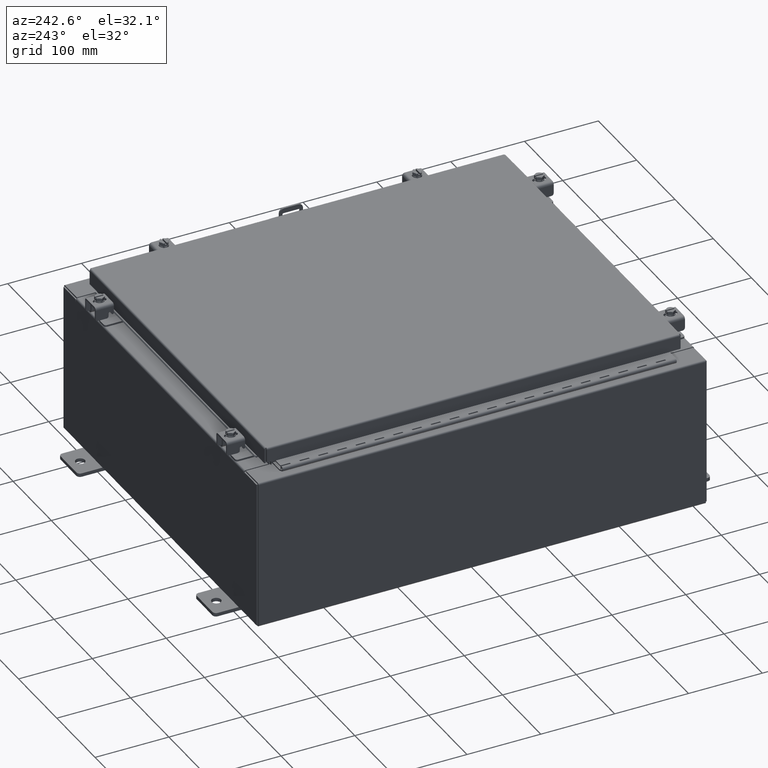
[diagram: clean part render]
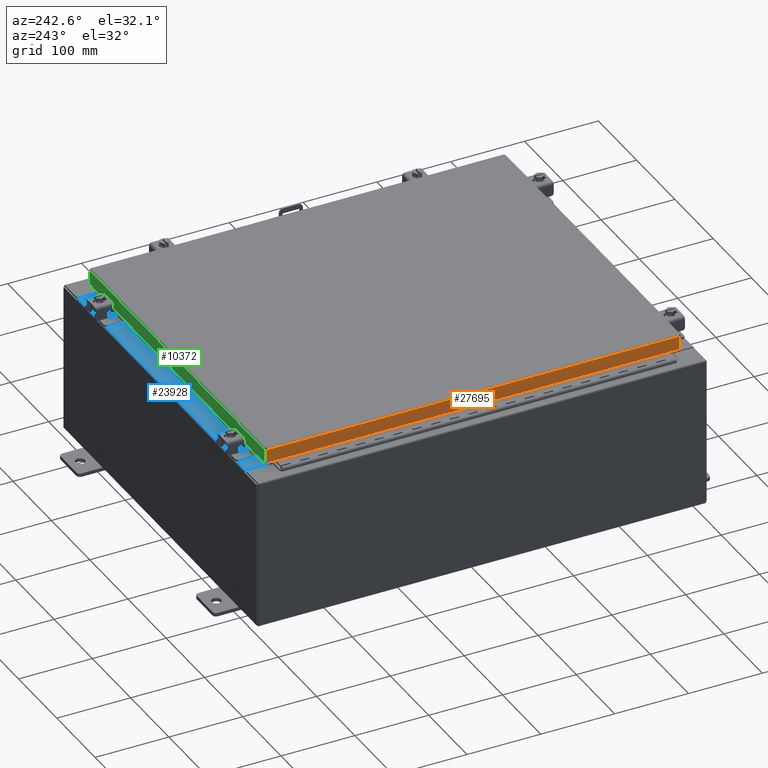
[diagram: same view with three faces highlighted in distinct colors, each labeled with its STEP entity id]
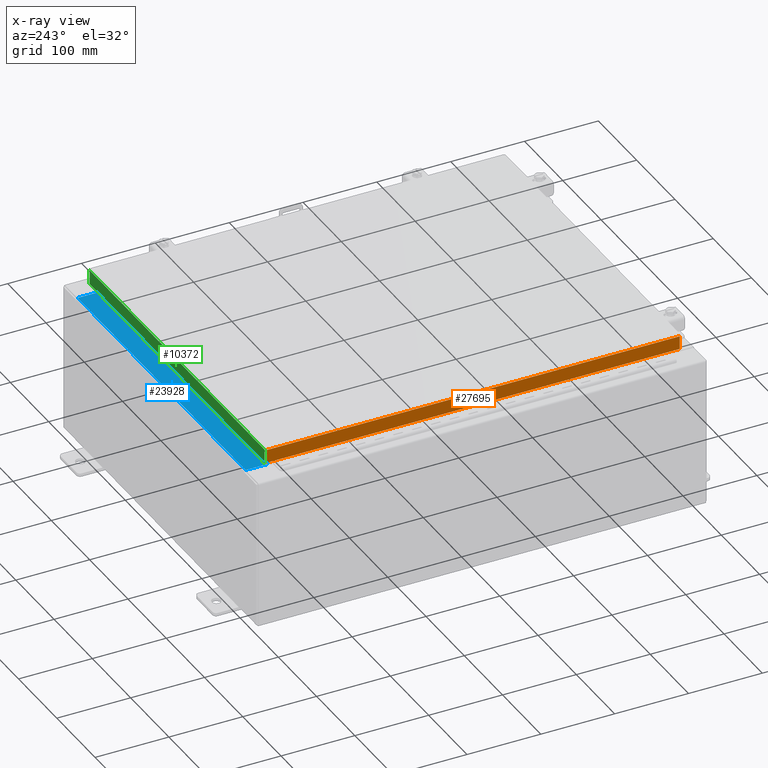
[diagram: x-ray of the same camera — body ghosted, the three highlighted faces saturated]
A machine part, auxiliary view with three faces highlighted in distinct colors.
The next image is the same camera in x-ray (body ghosted, the three faces saturated) — at least one of them is partly hidden behind the body in this view.
Their STEP definitions:

[orange] entity #27695 — the highlighted planar face has unit normal (1, 0, -0).
#854 = ORIENTED_EDGE ( 'NONE', *, *, #2031, .T. ) ;
#1526 = DIRECTION ( 'NONE',  ( -3.034122441942816500E-015, 0.0000000000000000000, -1.000000000000000000 ) ) ;
#2031 = EDGE_CURVE ( 'NONE', #32681, #29588, #24134, .T. ) ;
#2537 = DIRECTION ( 'NONE',  ( -3.034122441942816500E-015, 6.982962677686265900E-015, -1.000000000000000000 ) ) ;
#3167 = CARTESIAN_POINT ( 'NONE',  ( -9.078000000000001200, -11.00515786437626700, -0.7949999999999996000 ) ) ;
#3697 = CARTESIAN_POINT ( 'NONE',  ( -9.077999999999999400, 11.00515786437626700, 1.046531838129534400E-013 ) ) ;
#5030 = CARTESIAN_POINT ( 'NONE',  ( -9.077999999999999400, -11.00515786437627100, -0.07469999999999976700 ) ) ;
#6402 = ORIENTED_EDGE ( 'NONE', *, *, #32949, .F. ) ;
#6986 = VECTOR ( 'NONE', #7234, 39.37007874015748100 ) ;
#7234 = DIRECTION ( 'NONE',  ( -3.034122441942816500E-015, 6.982962677686265900E-015, -1.000000000000000000 ) ) ;
#9183 = ORIENTED_EDGE ( 'NONE', *, *, #30529, .F. ) ;
#9303 = CARTESIAN_POINT ( 'NONE',  ( -9.078000000000001200, 11.00515786437627100, -0.7949999999999969300 ) ) ;
#9663 = CARTESIAN_POINT ( 'NONE',  ( -9.077999999999999400, -11.00515786437626900, -0.08770000000000007000 ) ) ;
#12405 = AXIS2_PLACEMENT_3D ( 'NONE', #14502, #19476, #1526 ) ;
#12672 = VECTOR ( 'NONE', #32901, 39.37007874015748100 ) ;
#13237 = VECTOR ( 'NONE', #30807, 39.37007874015748100 ) ;
#14502 = CARTESIAN_POINT ( 'NONE',  ( -9.077999999999999400, -3.391264428150889200E-030, 2.780457718396847000E-014 ) ) ;
#15464 = CARTESIAN_POINT ( 'NONE',  ( -9.078000000000001200, -11.09400000000000100, -0.7949999999999997100 ) ) ;
#15514 = LINE ( 'NONE', #27827, #13237 ) ;
#15586 = EDGE_CURVE ( 'NONE', #29635, #18475, #18600, .T. ) ;
#16774 = VECTOR ( 'NONE', #2537, 39.37007874015748100 ) ;
#16805 = PLANE ( 'NONE',  #12405 ) ;
#17249 = EDGE_LOOP ( 'NONE', ( #9183, #854, #6402, #24172 ) ) ;
#17794 = FACE_OUTER_BOUND ( 'NONE', #17249, .T. ) ;
#18475 = VERTEX_POINT ( 'NONE', #3167 ) ;
#18600 = LINE ( 'NONE', #5030, #16774 ) ;
#19476 = DIRECTION ( 'NONE',  ( 1.000000000000000000, 3.735695558659274400E-031, -3.034122441942816500E-015 ) ) ;
#23422 = CARTESIAN_POINT ( 'NONE',  ( -9.077999999999999400, 11.00515786437626900, -0.08770000000000004200 ) ) ;
#24134 = LINE ( 'NONE', #3697, #6986 ) ;
#24172 = ORIENTED_EDGE ( 'NONE', *, *, #15586, .F. ) ;
#27695 = ADVANCED_FACE ( 'NONE', ( #17794 ), #16805, .F. ) ;
#27827 = CARTESIAN_POINT ( 'NONE',  ( -9.077999999999999400, -11.09400000000000100, -0.08770000000000004200 ) ) ;
#29110 = LINE ( 'NONE', #15464, #12672 ) ;
#29588 = VERTEX_POINT ( 'NONE', #9303 ) ;
#29635 = VERTEX_POINT ( 'NONE', #9663 ) ;
#30529 = EDGE_CURVE ( 'NONE', #32681, #29635, #15514, .T. ) ;
#30807 = DIRECTION ( 'NONE',  ( 3.735695558659274900E-031, -1.000000000000000000, -1.101212895818006000E-045 ) ) ;
#32681 = VERTEX_POINT ( 'NONE', #23422 ) ;
#32901 = DIRECTION ( 'NONE',  ( 4.379057701015054300E-047, 1.000000000000000000, 1.231227687788112300E-016 ) ) ;
#32949 = EDGE_CURVE ( 'NONE', #18475, #29588, #29110, .T. ) ;

[blue] entity #23928 — the highlighted planar face has unit normal (0, 0, 1).
#2383 = EDGE_CURVE ( 'NONE', #14953, #25597, #20566, .T. ) ;
#2498 = FACE_OUTER_BOUND ( 'NONE', #6640, .T. ) ;
#2505 = CARTESIAN_POINT ( 'NONE',  ( 8.637200000000000000, -1.300299999999999800, 4.000000000000004400 ) ) ;
#4351 = VECTOR ( 'NONE', #20081, 39.37007874015748100 ) ;
#4916 = EDGE_CURVE ( 'NONE', #14953, #28975, #14939, .T. ) ;
#6078 = EDGE_CURVE ( 'NONE', #20264, #28975, #28219, .T. ) ;
#6524 = DIRECTION ( 'NONE',  ( -1.000000000000000000, 0.0000000000000000000, 0.0000000000000000000 ) ) ;
#6640 = EDGE_LOOP ( 'NONE', ( #21665, #21831, #27451, #16294 ) ) ;
#6660 = CARTESIAN_POINT ( 'NONE',  ( 8.637200000000000000, -1.287299999999999900, 4.000000000000004400 ) ) ;
#7585 = CARTESIAN_POINT ( 'NONE',  ( -8.637200000000000000, -0.08770000000000000000, 4.000000000000000000 ) ) ;
#12018 = EDGE_CURVE ( 'NONE', #25597, #20264, #29142, .T. ) ;
#14309 = CARTESIAN_POINT ( 'NONE',  ( 8.637200000000000000, -1.287299999999999900, 4.000000000000003600 ) ) ;
#14317 = CARTESIAN_POINT ( 'NONE',  ( 0.0000000000000000000, 1.425992975200418500E-014, 4.000000000000000000 ) ) ;
#14787 = DIRECTION ( 'NONE',  ( -1.000000000000000000, 3.162886113166609200E-017, -1.128005754888089100E-031 ) ) ;
#14939 = LINE ( 'NONE', #18521, #22309 ) ;
#14953 = VERTEX_POINT ( 'NONE', #18522 ) ;
#16294 = ORIENTED_EDGE ( 'NONE', *, *, #4916, .T. ) ;
#17040 = VECTOR ( 'NONE', #29012, 39.37007874015748100 ) ;
#18107 = PLANE ( 'NONE',  #20085 ) ;
#18521 = CARTESIAN_POINT ( 'NONE',  ( -2.773851121247567100E-018, -0.08770000000000000000, 4.000000000000000900 ) ) ;
#18522 = CARTESIAN_POINT ( 'NONE',  ( 8.637200000000000000, -0.08769999999999965300, 4.000000000000000000 ) ) ;
#19912 = DIRECTION ( 'NONE',  ( 0.0000000000000000000, -1.000000000000000000, 3.566381192773190000E-015 ) ) ;
#20081 = DIRECTION ( 'NONE',  ( -0.0000000000000000000, 1.000000000000000000, -3.566381192773190000E-015 ) ) ;
#20085 = AXIS2_PLACEMENT_3D ( 'NONE', #14317, #26355, #19912 ) ;
#20264 = VERTEX_POINT ( 'NONE', #24718 ) ;
#20566 = LINE ( 'NONE', #2505, #17040 ) ;
#21665 = ORIENTED_EDGE ( 'NONE', *, *, #6078, .F. ) ;
#21831 = ORIENTED_EDGE ( 'NONE', *, *, #12018, .F. ) ;
#22309 = VECTOR ( 'NONE', #14787, 39.37007874015748100 ) ;
#23928 = ADVANCED_FACE ( 'NONE', ( #2498 ), #18107, .T. ) ;
#24718 = CARTESIAN_POINT ( 'NONE',  ( -8.637200000000000000, -1.287299999999999200, 4.000000000000004400 ) ) ;
#25597 = VERTEX_POINT ( 'NONE', #6660 ) ;
#26355 = DIRECTION ( 'NONE',  ( 0.0000000000000000000, 3.566381192773190000E-015, 1.000000000000000000 ) ) ;
#27451 = ORIENTED_EDGE ( 'NONE', *, *, #2383, .F. ) ;
#28219 = LINE ( 'NONE', #32391, #4351 ) ;
#28975 = VERTEX_POINT ( 'NONE', #7585 ) ;
#29012 = DIRECTION ( 'NONE',  ( -0.0000000000000000000, -1.000000000000000000, 3.566381192773190000E-015 ) ) ;
#29142 = LINE ( 'NONE', #14309, #29428 ) ;
#29428 = VECTOR ( 'NONE', #6524, 39.37007874015748100 ) ;
#32391 = CARTESIAN_POINT ( 'NONE',  ( -8.637200000000000000, -0.07469999999999973900, 4.000000000000000000 ) ) ;

[green] entity #10372 — the highlighted planar face has unit normal (0, -1, -0).
#284 = DIRECTION ( 'NONE',  ( 1.000000000000000000, -4.379057701015054300E-047, 1.278955053213606700E-016 ) ) ;
#530 = CARTESIAN_POINT ( 'NONE',  ( -9.077999999999999400, 11.09399999999999900, -0.08770000000000007000 ) ) ;
#1141 = EDGE_CURVE ( 'NONE', #15287, #9463, #8260, .T. ) ;
#1709 = VERTEX_POINT ( 'NONE', #16651 ) ;
#2243 = ORIENTED_EDGE ( 'NONE', *, *, #14660, .F. ) ;
#3537 = EDGE_CURVE ( 'NONE', #1709, #15411, #28526, .T. ) ;
#4057 = AXIS2_PLACEMENT_3D ( 'NONE', #19387, #18295, #18076 ) ;
#4104 = CARTESIAN_POINT ( 'NONE',  ( -9.077999999999999400, 11.09400000000000100, -0.8500000000000019800 ) ) ;
#4475 = EDGE_CURVE ( 'NONE', #15411, #17043, #8711, .T. ) ;
#4787 = ORIENTED_EDGE ( 'NONE', *, *, #19896, .T. ) ;
#5395 = DIRECTION ( 'NONE',  ( 1.000000000000000000, -4.379057701015054300E-047, 1.278955053213606700E-016 ) ) ;
#5527 = LINE ( 'NONE', #27491, #19187 ) ;
#8243 = ORIENTED_EDGE ( 'NONE', *, *, #28244, .F. ) ;
#8260 = LINE ( 'NONE', #4104, #26777 ) ;
#8711 = LINE ( 'NONE', #24771, #20822 ) ;
#9463 = VERTEX_POINT ( 'NONE', #19672 ) ;
#10372 = ADVANCED_FACE ( 'NONE', ( #19609 ), #18823, .F. ) ;
#10764 = LINE ( 'NONE', #24591, #16757 ) ;
#12084 = EDGE_LOOP ( 'NONE', ( #20886, #4787, #32643, #2243, #8243, #17323 ) ) ;
#12323 = LINE ( 'NONE', #13147, #16193 ) ;
#12825 = CARTESIAN_POINT ( 'NONE',  ( -8.239157864376265300, 11.09399999999999800, -0.8500000000000046400 ) ) ;
#13147 = CARTESIAN_POINT ( 'NONE',  ( -8.239157864376267100, 11.09399999999999800, -0.8500000000000046400 ) ) ;
#14316 = DIRECTION ( 'NONE',  ( -1.000000000000000000, -3.605222026166234800E-031, -9.826997386333231700E-046 ) ) ;
#14660 = EDGE_CURVE ( 'NONE', #22590, #15287, #12323, .T. ) ;
#15287 = VERTEX_POINT ( 'NONE', #16825 ) ;
#15411 = VERTEX_POINT ( 'NONE', #28288 ) ;
#16193 = VECTOR ( 'NONE', #24406, 39.37007874015748100 ) ;
#16651 = CARTESIAN_POINT ( 'NONE',  ( 8.989157864376267100, 11.09399999999999900, -0.08770000000000007000 ) ) ;
#16757 = VECTOR ( 'NONE', #5395, 39.37007874015748100 ) ;
#16825 = CARTESIAN_POINT ( 'NONE',  ( 8.239157864376267100, 11.09399999999999800, -0.8500000000000046400 ) ) ;
#17043 = VERTEX_POINT ( 'NONE', #21906 ) ;
#17103 = DIRECTION ( 'NONE',  ( 0.0000000000000000000, 2.818880942772351900E-015, -1.000000000000000000 ) ) ;
#17323 = ORIENTED_EDGE ( 'NONE', *, *, #4475, .F. ) ;
#18076 = DIRECTION ( 'NONE',  ( 0.0000000000000000000, 2.818880942772351900E-015, -1.000000000000000000 ) ) ;
#18295 = DIRECTION ( 'NONE',  ( 3.605222026166233900E-031, -1.000000000000000000, -2.818880942772351900E-015 ) ) ;
#18823 = PLANE ( 'NONE',  #4057 ) ;
#19187 = VECTOR ( 'NONE', #17103, 39.37007874015748100 ) ;
#19387 = CARTESIAN_POINT ( 'NONE',  ( -3.999633315828819900E-030, 11.09399999999999900, 3.153347883512804900E-014 ) ) ;
#19609 = FACE_OUTER_BOUND ( 'NONE', #12084, .T. ) ;
#19672 = CARTESIAN_POINT ( 'NONE',  ( 8.989157864376267100, 11.09400000000000100, -0.8499999999999996400 ) ) ;
#19896 = EDGE_CURVE ( 'NONE', #1709, #9463, #5527, .T. ) ;
#20408 = VECTOR ( 'NONE', #14316, 39.37007874015748100 ) ;
#20822 = VECTOR ( 'NONE', #21833, 39.37007874015748100 ) ;
#20886 = ORIENTED_EDGE ( 'NONE', *, *, #3537, .F. ) ;
#21833 = DIRECTION ( 'NONE',  ( -0.0000000000000000000, 2.818880942772351900E-015, -1.000000000000000000 ) ) ;
#21906 = CARTESIAN_POINT ( 'NONE',  ( -8.989157864376267100, 11.09400000000000100, -0.8500000000000019800 ) ) ;
#22590 = VERTEX_POINT ( 'NONE', #12825 ) ;
#24406 = DIRECTION ( 'NONE',  ( 1.000000000000000000, -0.0000000000000000000, -0.0000000000000000000 ) ) ;
#24591 = CARTESIAN_POINT ( 'NONE',  ( -9.077999999999999400, 11.09400000000000100, -0.8500000000000019800 ) ) ;
#24771 = CARTESIAN_POINT ( 'NONE',  ( -8.989157864376267100, 11.09399999999999900, -0.07469999999999978000 ) ) ;
#26777 = VECTOR ( 'NONE', #284, 39.37007874015748100 ) ;
#27491 = CARTESIAN_POINT ( 'NONE',  ( 8.989157864376267100, 11.09399999999999900, 3.153347883512804900E-014 ) ) ;
#28244 = EDGE_CURVE ( 'NONE', #17043, #22590, #10764, .T. ) ;
#28288 = CARTESIAN_POINT ( 'NONE',  ( -8.989157864376267100, 11.09399999999999900, -0.08770000000000007000 ) ) ;
#28526 = LINE ( 'NONE', #530, #20408 ) ;
#32643 = ORIENTED_EDGE ( 'NONE', *, *, #1141, .F. ) ;